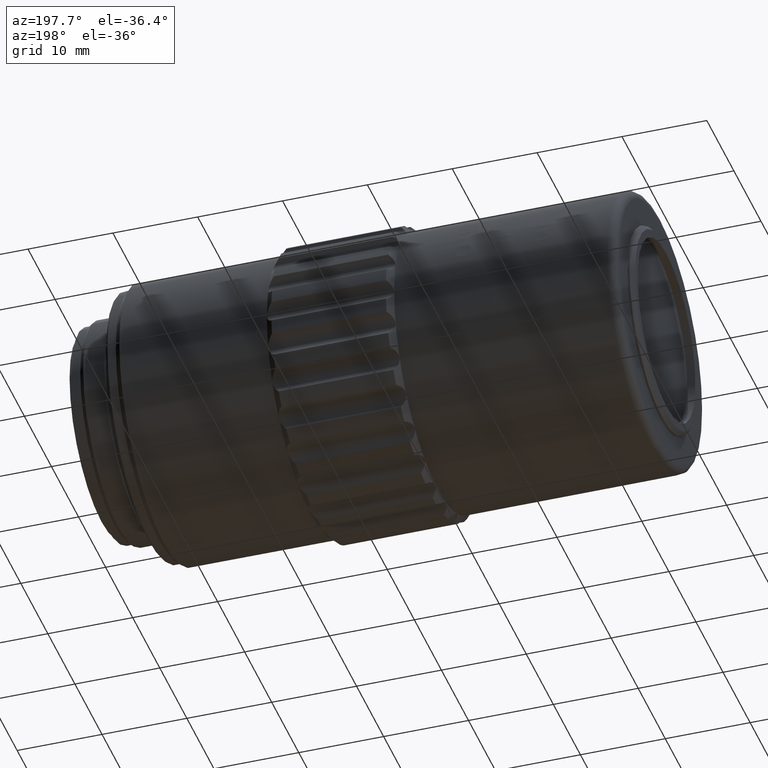
[diagram: clean part render]
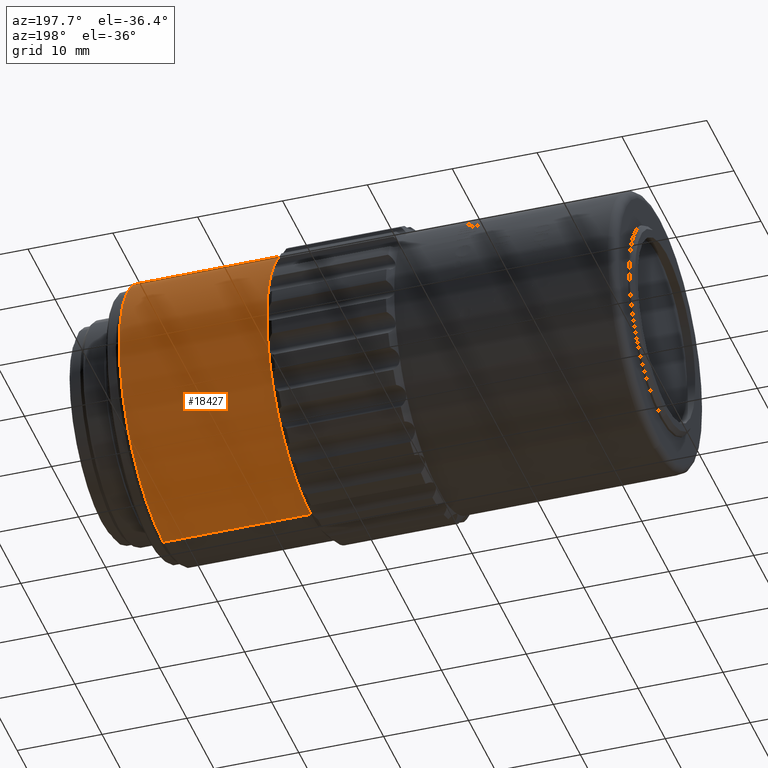
[diagram: same view with one face highlighted and labeled with its STEP entity id]
A machine part, auxiliary view. The second image highlights one B-rep face of the part: STEP entity #18427.
In plain terms, the highlighted cylindrical surface (partial cylindrical patch) has radius 16.25 mm, axis along (-1, -0, -0).
Its self-contained STEP definition (entity closure, byte-faithful):
#223 = VECTOR ( 'NONE', #22924, 1000.000000000000000 ) ;
#261 = DIRECTION ( 'NONE',  ( 0.000000000000000000, 0.000000000000000000, 1.000000000000000000 ) ) ;
#1518 = AXIS2_PLACEMENT_3D ( 'NONE', #30402, #20354, #25301 ) ;
#1525 = CIRCLE ( 'NONE', #5746, 16.25000000000000000 ) ;
#1804 = CARTESIAN_POINT ( 'NONE',  ( 33.89999999999999858, 0.000000000000000000, 0.000000000000000000 ) ) ;
#2059 = VERTEX_POINT ( 'NONE', #25959 ) ;
#2482 = DIRECTION ( 'NONE',  ( 0.000000000000000000, 0.000000000000000000, 1.000000000000000000 ) ) ;
#2570 = VECTOR ( 'NONE', #19682, 1000.000000000000000 ) ;
#2573 = CIRCLE ( 'NONE', #20985, 16.25000000000000000 ) ;
#2659 = LINE ( 'NONE', #22762, #223 ) ;
#2689 = EDGE_LOOP ( 'NONE', ( #24110, #13488, #14548, #25544, #22807, #15957, #27394, #15374, #14068, #20179, #7696, #13586, #25705, #4402, #28140, #15546, #22035 ) ) ;
#2752 = CIRCLE ( 'NONE', #29035, 16.25000000000000000 ) ;
#2936 = DIRECTION ( 'NONE',  ( -1.000000000000000000, -0.000000000000000000, -0.000000000000000000 ) ) ;
#3304 = CIRCLE ( 'NONE', #18642, 16.25000000000000000 ) ;
#3625 = DIRECTION ( 'NONE',  ( -1.000000000000000000, -0.000000000000000000, -0.000000000000000000 ) ) ;
#3632 = CIRCLE ( 'NONE', #14679, 16.25000000000000000 ) ;
#3710 = DIRECTION ( 'NONE',  ( 0.000000000000000000, 0.000000000000000000, 1.000000000000000000 ) ) ;
#4102 = CYLINDRICAL_SURFACE ( 'NONE', #28639, 16.25000000000000000 ) ;
#4402 = ORIENTED_EDGE ( 'NONE', *, *, #21234, .F. ) ;
#4510 = EDGE_CURVE ( 'NONE', #27472, #26416, #22059, .T. ) ;
#4547 = DIRECTION ( 'NONE',  ( -1.000000000000000000, -0.000000000000000000, -0.000000000000000000 ) ) ;
#4853 = VERTEX_POINT ( 'NONE', #6069 ) ;
#4880 = CARTESIAN_POINT ( 'NONE',  ( 75.79999999999999716, 0.000000000000000000, 0.000000000000000000 ) ) ;
#4969 = CARTESIAN_POINT ( 'NONE',  ( 75.79999999999999716, 5.021526158592892308, 15.45466838979624669 ) ) ;
#5250 = CIRCLE ( 'NONE', #9460, 16.25000000000000000 ) ;
#5746 = AXIS2_PLACEMENT_3D ( 'NONE', #18585, #10846, #25827 ) ;
#5847 = VERTEX_POINT ( 'NONE', #9961 ) ;
#5977 = CIRCLE ( 'NONE', #26504, 16.25000000000000000 ) ;
#6069 = CARTESIAN_POINT ( 'NONE',  ( 75.79999999999999716, 14.23998355071278255, 7.828497204152873756 ) ) ;
#6554 = DIRECTION ( 'NONE',  ( -1.000000000000000000, -0.000000000000000000, -0.000000000000000000 ) ) ;
#6690 = CARTESIAN_POINT ( 'NONE',  ( 75.79999999999999716, 5.021526158592896749, -15.45466838979624669 ) ) ;
#7227 = CARTESIAN_POINT ( 'NONE',  ( 93.20000000000000284, 0.000000000000000000, 16.25000000000000000 ) ) ;
#7432 = DIRECTION ( 'NONE',  ( -1.000000000000000000, -0.000000000000000000, -0.000000000000000000 ) ) ;
#7481 = DIRECTION ( 'NONE',  ( 0.000000000000000000, 0.000000000000000000, 1.000000000000000000 ) ) ;
#7691 = CARTESIAN_POINT ( 'NONE',  ( 75.79999999999999716, 15.73947636834025587, 4.041210666428885823 ) ) ;
#7696 = ORIENTED_EDGE ( 'NONE', *, *, #21186, .F. ) ;
#7845 = AXIS2_PLACEMENT_3D ( 'NONE', #4880, #14943, #29762 ) ;
#8045 = VERTEX_POINT ( 'NONE', #6690 ) ;
#8166 = DIRECTION ( 'NONE',  ( -1.000000000000000000, -0.000000000000000000, -0.000000000000000000 ) ) ;
#9208 = VERTEX_POINT ( 'NONE', #4969 ) ;
#9460 = AXIS2_PLACEMENT_3D ( 'NONE', #15577, #8166, #261 ) ;
#9785 = CARTESIAN_POINT ( 'NONE',  ( 93.20000000000000284, 0.000000000000000000, 0.000000000000000000 ) ) ;
#9961 = CARTESIAN_POINT ( 'NONE',  ( 75.79999999999999716, 11.84574019559793712, -11.12389047134119124 ) ) ;
#10188 = CARTESIAN_POINT ( 'NONE',  ( 75.79999999999999716, 0.000000000000000000, 0.000000000000000000 ) ) ;
#10558 = EDGE_CURVE ( 'NONE', #2059, #27472, #1525, .T. ) ;
#10816 = DIRECTION ( 'NONE',  ( -1.000000000000000000, -0.000000000000000000, -0.000000000000000000 ) ) ;
#10832 = VERTEX_POINT ( 'NONE', #17726 ) ;
#10846 = DIRECTION ( 'NONE',  ( -1.000000000000000000, -0.000000000000000000, -0.000000000000000000 ) ) ;
#11016 = CIRCLE ( 'NONE', #13647, 16.25000000000000000 ) ;
#11335 = CARTESIAN_POINT ( 'NONE',  ( 75.79999999999999716, 0.000000000000000000, 0.000000000000000000 ) ) ;
#11371 = EDGE_CURVE ( 'NONE', #5847, #10832, #11016, .T. ) ;
#11452 = CARTESIAN_POINT ( 'NONE',  ( 75.79999999999999716, 0.000000000000000000, 0.000000000000000000 ) ) ;
#11608 = EDGE_CURVE ( 'NONE', #14719, #2059, #18521, .T. ) ;
#11697 = CARTESIAN_POINT ( 'NONE',  ( 75.79999999999999716, 8.707185418408696975, 13.72032878940774303 ) ) ;
#12425 = CARTESIAN_POINT ( 'NONE',  ( 75.79999999999999716, 1.020345942351347679, 16.21793433695941289 ) ) ;
#13163 = AXIS2_PLACEMENT_3D ( 'NONE', #31952, #7432, #2482 ) ;
#13356 = AXIS2_PLACEMENT_3D ( 'NONE', #20599, #22911, #15501 ) ;
#13488 = ORIENTED_EDGE ( 'NONE', *, *, #18223, .T. ) ;
#13586 = ORIENTED_EDGE ( 'NONE', *, *, #29349, .F. ) ;
#13609 = EDGE_CURVE ( 'NONE', #10832, #8045, #2752, .T. ) ;
#13615 = CARTESIAN_POINT ( 'NONE',  ( 75.79999999999999716, 15.73947636834025232, -4.041210666428895593 ) ) ;
#13633 = VERTEX_POINT ( 'NONE', #7227 ) ;
#13647 = AXIS2_PLACEMENT_3D ( 'NONE', #10188, #2936, #24849 ) ;
#14068 = ORIENTED_EDGE ( 'NONE', *, *, #10558, .F. ) ;
#14242 = EDGE_CURVE ( 'NONE', #13633, #27945, #2573, .T. ) ;
#14280 = VERTEX_POINT ( 'NONE', #26233 ) ;
#14548 = ORIENTED_EDGE ( 'NONE', *, *, #22455, .F. ) ;
#14622 = CARTESIAN_POINT ( 'NONE',  ( 75.79999999999999716, 0.000000000000000000, 0.000000000000000000 ) ) ;
#14679 = AXIS2_PLACEMENT_3D ( 'NONE', #11452, #10816, #3710 ) ;
#14719 = VERTEX_POINT ( 'NONE', #7691 ) ;
#14943 = DIRECTION ( 'NONE',  ( -1.000000000000000000, -0.000000000000000000, -0.000000000000000000 ) ) ;
#15374 = ORIENTED_EDGE ( 'NONE', *, *, #4510, .F. ) ;
#15501 = DIRECTION ( 'NONE',  ( 0.000000000000000000, 0.000000000000000000, 1.000000000000000000 ) ) ;
#15546 = ORIENTED_EDGE ( 'NONE', *, *, #16401, .F. ) ;
#15577 = CARTESIAN_POINT ( 'NONE',  ( 75.79999999999999716, 0.000000000000000000, 0.000000000000000000 ) ) ;
#15957 = ORIENTED_EDGE ( 'NONE', *, *, #11371, .F. ) ;
#16272 = CIRCLE ( 'NONE', #7845, 16.25000000000000000 ) ;
#16401 = EDGE_CURVE ( 'NONE', #28101, #24128, #19663, .T. ) ;
#16468 = DIRECTION ( 'NONE',  ( 0.000000000000000000, 0.000000000000000000, 1.000000000000000000 ) ) ;
#17220 = CARTESIAN_POINT ( 'NONE',  ( 75.79999999999999716, 14.23998355071278255, -7.828497204152873756 ) ) ;
#17247 = DIRECTION ( 'NONE',  ( 0.000000000000000000, 0.000000000000000000, 1.000000000000000000 ) ) ;
#17259 = EDGE_CURVE ( 'NONE', #24128, #9208, #5977, .T. ) ;
#17376 = LINE ( 'NONE', #24773, #2570 ) ;
#17726 = CARTESIAN_POINT ( 'NONE',  ( 75.79999999999999716, 8.707185418408693423, -13.72032878940774481 ) ) ;
#18091 = CIRCLE ( 'NONE', #27533, 16.25000000000000000 ) ;
#18223 = EDGE_CURVE ( 'NONE', #27945, #26869, #2659, .T. ) ;
#18229 = EDGE_CURVE ( 'NONE', #26416, #5847, #3304, .T. ) ;
#18313 = DIRECTION ( 'NONE',  ( 0.000000000000000000, 0.000000000000000000, 1.000000000000000000 ) ) ;
#18427 = ADVANCED_FACE ( 'NONE', ( #26364 ), #4102, .T. ) ;
#18521 = CIRCLE ( 'NONE', #23771, 16.25000000000000000 ) ;
#18585 = CARTESIAN_POINT ( 'NONE',  ( 75.79999999999999716, 0.000000000000000000, 0.000000000000000000 ) ) ;
#18642 = AXIS2_PLACEMENT_3D ( 'NONE', #20283, #25387, #30328 ) ;
#18953 = DIRECTION ( 'NONE',  ( 0.000000000000000000, 0.000000000000000000, 1.000000000000000000 ) ) ;
#19625 = CARTESIAN_POINT ( 'NONE',  ( 75.79999999999999716, 0.000000000000000000, 0.000000000000000000 ) ) ;
#19663 = CIRCLE ( 'NONE', #13356, 16.25000000000000000 ) ;
#19682 = DIRECTION ( 'NONE',  ( -1.000000000000000000, -0.000000000000000000, -0.000000000000000000 ) ) ;
#19928 = CARTESIAN_POINT ( 'NONE',  ( 75.79999999999999716, 0.000000000000000000, 16.25000000000000000 ) ) ;
#20179 = ORIENTED_EDGE ( 'NONE', *, *, #11608, .F. ) ;
#20283 = CARTESIAN_POINT ( 'NONE',  ( 75.79999999999999716, 0.000000000000000000, 0.000000000000000000 ) ) ;
#20354 = DIRECTION ( 'NONE',  ( -1.000000000000000000, -0.000000000000000000, -0.000000000000000000 ) ) ;
#20518 = CIRCLE ( 'NONE', #13163, 16.25000000000000000 ) ;
#20599 = CARTESIAN_POINT ( 'NONE',  ( 75.79999999999999716, 0.000000000000000000, 0.000000000000000000 ) ) ;
#20638 = EDGE_CURVE ( 'NONE', #27922, #14280, #5250, .T. ) ;
#20985 = AXIS2_PLACEMENT_3D ( 'NONE', #9785, #30046, #7481 ) ;
#21082 = VERTEX_POINT ( 'NONE', #31011 ) ;
#21137 = CARTESIAN_POINT ( 'NONE',  ( 75.79999999999999716, 1.990051048614449313E-15, -16.25000000000000000 ) ) ;
#21186 = EDGE_CURVE ( 'NONE', #4853, #14719, #20518, .T. ) ;
#21234 = EDGE_CURVE ( 'NONE', #9208, #27922, #22091, .T. ) ;
#21260 = DIRECTION ( 'NONE',  ( -1.000000000000000000, -0.000000000000000000, -0.000000000000000000 ) ) ;
#21743 = CARTESIAN_POINT ( 'NONE',  ( 93.20000000000000284, 1.990051048614449313E-15, -16.25000000000000000 ) ) ;
#22035 = ORIENTED_EDGE ( 'NONE', *, *, #24062, .F. ) ;
#22059 = CIRCLE ( 'NONE', #1518, 16.25000000000000000 ) ;
#22068 = DIRECTION ( 'NONE',  ( -1.000000000000000000, -0.000000000000000000, -0.000000000000000000 ) ) ;
#22091 = CIRCLE ( 'NONE', #30503, 16.25000000000000000 ) ;
#22455 = EDGE_CURVE ( 'NONE', #21082, #26869, #3632, .T. ) ;
#22762 = CARTESIAN_POINT ( 'NONE',  ( 33.89999999999999858, 1.990051048614449313E-15, -16.25000000000000000 ) ) ;
#22807 = ORIENTED_EDGE ( 'NONE', *, *, #13609, .F. ) ;
#22886 = EDGE_CURVE ( 'NONE', #8045, #21082, #16272, .T. ) ;
#22911 = DIRECTION ( 'NONE',  ( -1.000000000000000000, -0.000000000000000000, -0.000000000000000000 ) ) ;
#22924 = DIRECTION ( 'NONE',  ( -1.000000000000000000, -0.000000000000000000, -0.000000000000000000 ) ) ;
#23771 = AXIS2_PLACEMENT_3D ( 'NONE', #26664, #3625, #16468 ) ;
#24062 = EDGE_CURVE ( 'NONE', #13633, #28101, #17376, .T. ) ;
#24110 = ORIENTED_EDGE ( 'NONE', *, *, #14242, .T. ) ;
#24128 = VERTEX_POINT ( 'NONE', #12425 ) ;
#24332 = DIRECTION ( 'NONE',  ( 0.000000000000000000, 0.000000000000000000, 1.000000000000000000 ) ) ;
#24773 = CARTESIAN_POINT ( 'NONE',  ( 33.89999999999999858, 0.000000000000000000, 16.25000000000000000 ) ) ;
#24849 = DIRECTION ( 'NONE',  ( 0.000000000000000000, 0.000000000000000000, 1.000000000000000000 ) ) ;
#24889 = DIRECTION ( 'NONE',  ( -1.000000000000000000, -0.000000000000000000, -0.000000000000000000 ) ) ;
#25301 = DIRECTION ( 'NONE',  ( 0.000000000000000000, 0.000000000000000000, 1.000000000000000000 ) ) ;
#25387 = DIRECTION ( 'NONE',  ( -1.000000000000000000, -0.000000000000000000, -0.000000000000000000 ) ) ;
#25544 = ORIENTED_EDGE ( 'NONE', *, *, #22886, .F. ) ;
#25705 = ORIENTED_EDGE ( 'NONE', *, *, #20638, .F. ) ;
#25827 = DIRECTION ( 'NONE',  ( 0.000000000000000000, 0.000000000000000000, 1.000000000000000000 ) ) ;
#25959 = CARTESIAN_POINT ( 'NONE',  ( 75.79999999999999716, 16.25000000000000000, -4.775907683558541987E-17 ) ) ;
#26233 = CARTESIAN_POINT ( 'NONE',  ( 75.79999999999999716, 11.84574019559794245, 11.12389047134118591 ) ) ;
#26364 = FACE_OUTER_BOUND ( 'NONE', #2689, .T. ) ;
#26416 = VERTEX_POINT ( 'NONE', #17220 ) ;
#26504 = AXIS2_PLACEMENT_3D ( 'NONE', #11335, #4547, #17247 ) ;
#26664 = CARTESIAN_POINT ( 'NONE',  ( 75.79999999999999716, 0.000000000000000000, 0.000000000000000000 ) ) ;
#26869 = VERTEX_POINT ( 'NONE', #21137 ) ;
#27394 = ORIENTED_EDGE ( 'NONE', *, *, #18229, .F. ) ;
#27472 = VERTEX_POINT ( 'NONE', #13615 ) ;
#27533 = AXIS2_PLACEMENT_3D ( 'NONE', #14622, #6554, #24332 ) ;
#27922 = VERTEX_POINT ( 'NONE', #11697 ) ;
#27945 = VERTEX_POINT ( 'NONE', #21743 ) ;
#28101 = VERTEX_POINT ( 'NONE', #19928 ) ;
#28140 = ORIENTED_EDGE ( 'NONE', *, *, #17259, .F. ) ;
#28194 = CARTESIAN_POINT ( 'NONE',  ( 75.79999999999999716, 0.000000000000000000, 0.000000000000000000 ) ) ;
#28639 = AXIS2_PLACEMENT_3D ( 'NONE', #1804, #22068, #18953 ) ;
#29035 = AXIS2_PLACEMENT_3D ( 'NONE', #28194, #21260, #18313 ) ;
#29345 = DIRECTION ( 'NONE',  ( 0.000000000000000000, 0.000000000000000000, 1.000000000000000000 ) ) ;
#29349 = EDGE_CURVE ( 'NONE', #14280, #4853, #18091, .T. ) ;
#29762 = DIRECTION ( 'NONE',  ( 0.000000000000000000, 0.000000000000000000, 1.000000000000000000 ) ) ;
#30046 = DIRECTION ( 'NONE',  ( -1.000000000000000000, -0.000000000000000000, -0.000000000000000000 ) ) ;
#30328 = DIRECTION ( 'NONE',  ( 0.000000000000000000, 0.000000000000000000, 1.000000000000000000 ) ) ;
#30402 = CARTESIAN_POINT ( 'NONE',  ( 75.79999999999999716, 0.000000000000000000, 0.000000000000000000 ) ) ;
#30503 = AXIS2_PLACEMENT_3D ( 'NONE', #19625, #24889, #29345 ) ;
#31011 = CARTESIAN_POINT ( 'NONE',  ( 75.79999999999999716, 1.020345942351341240, -16.21793433695941289 ) ) ;
#31952 = CARTESIAN_POINT ( 'NONE',  ( 75.79999999999999716, 0.000000000000000000, 0.000000000000000000 ) ) ;